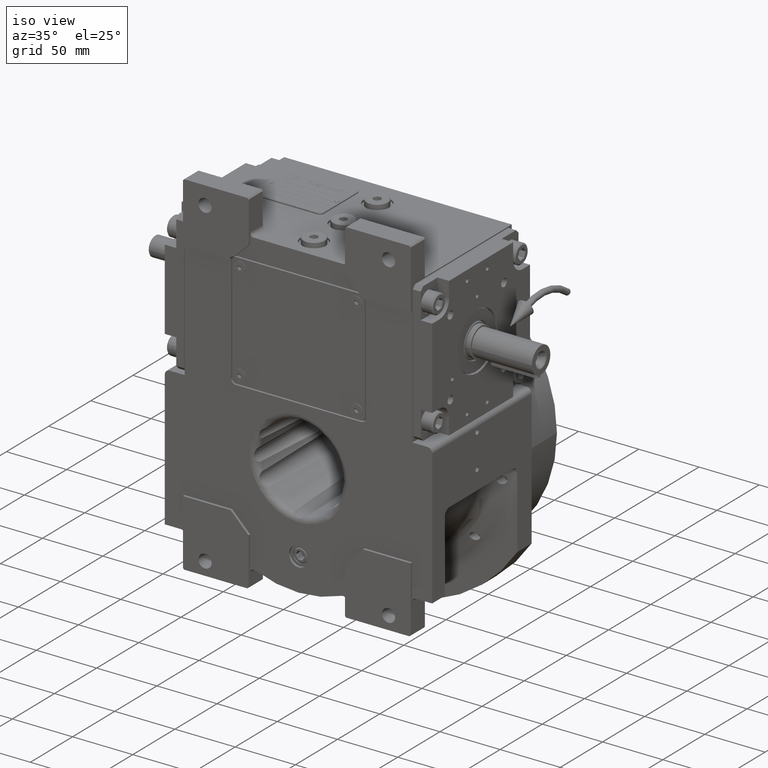
[diagram: clean part render]
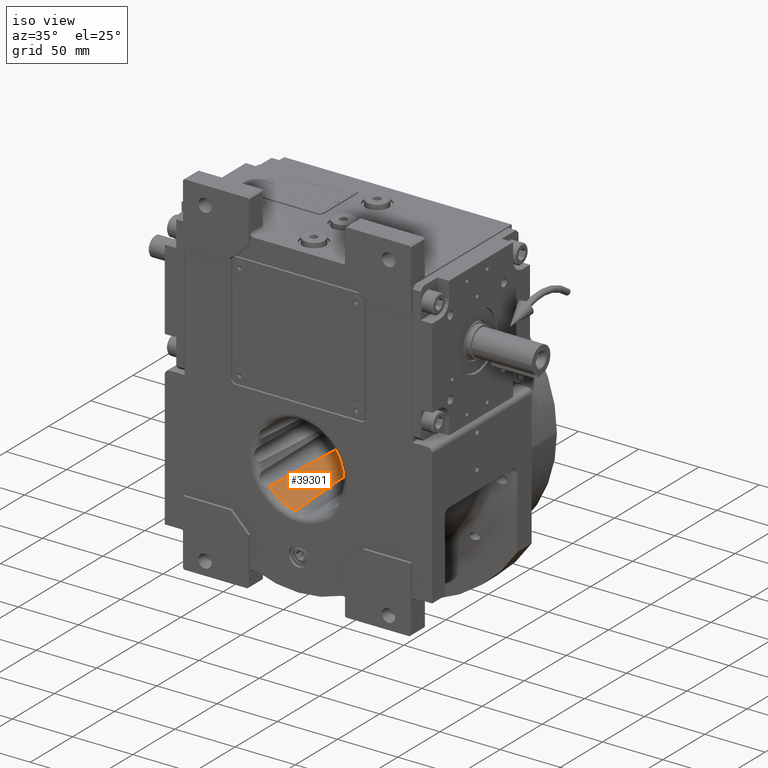
[diagram: same view with one face highlighted and labeled with its STEP entity id]
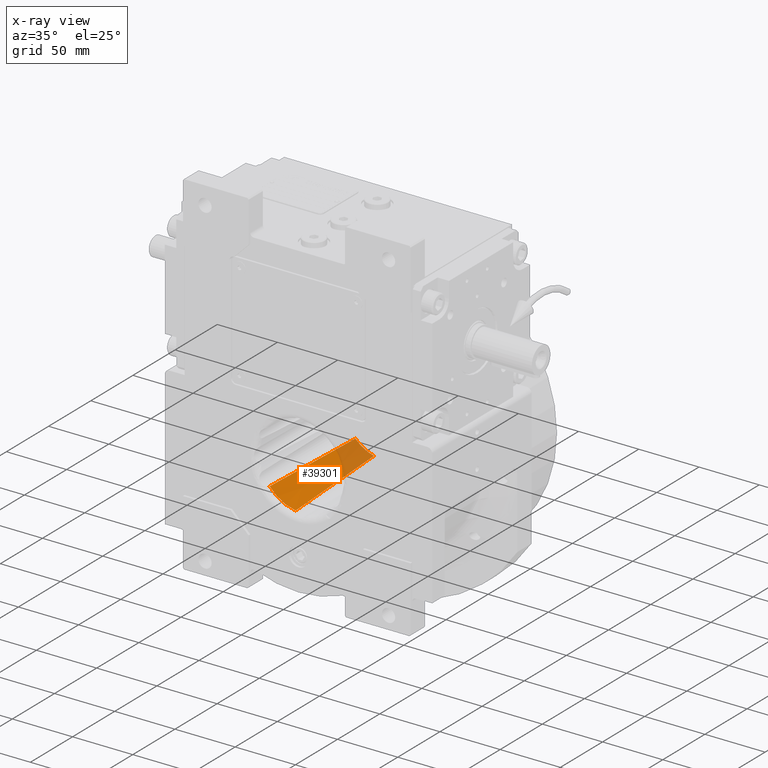
[diagram: x-ray of the same camera — body ghosted, the highlighted face saturated]
A machine part, iso view. The second image highlights one B-rep face of the part: STEP entity #39301.
The next image is the same camera in x-ray: the body ghosted, the highlighted face saturated — about 25% of this face is hidden behind the body in this view.
In plain terms, the highlighted conical surface has half-angle 2.224 deg.
Its self-contained STEP definition (entity closure, byte-faithful):
#450 = CARTESIAN_POINT ( 'NONE',  ( -25.03417263626851863, -5.111746341572933616, -22.44241922405262457 ) ) ;
#648 = CARTESIAN_POINT ( 'NONE',  ( -6.979709668917707610, -1.494847328070269876, -32.74476566864652227 ) ) ;
#791 = CARTESIAN_POINT ( 'NONE',  ( -23.48138045856269684, 30.61457057440819796, -22.08259406602224217 ) ) ;
#2926 = VERTEX_POINT ( 'NONE', #46606 ) ;
#3305 = EDGE_CURVE ( 'NONE', #47916, #8140, #55474, .T. ) ;
#3421 = EDGE_CURVE ( 'NONE', #47916, #64871, #22805, .T. ) ;
#3987 = CARTESIAN_POINT ( 'NONE',  ( -5.723853692384750502, -48.69402850002909844, -34.84639029672324995 ) ) ;
#4878 = CARTESIAN_POINT ( 'NONE',  ( -6.983499318581207760, -1.271834121756846736, -32.73510189993323394 ) ) ;
#5321 = FACE_OUTER_BOUND ( 'NONE', #12709, .T. ) ;
#5352 = CARTESIAN_POINT ( 'NONE',  ( -27.31593238095755183, -48.69402850002909844, -22.38019785351220392 ) ) ;
#5567 = CARTESIAN_POINT ( 'NONE',  ( -6.956713694644892421, -2.830628606097816302, -32.80269391485042263 ) ) ;
#6064 = CARTESIAN_POINT ( 'NONE',  ( -24.14431659667766539, 14.73565036844734344, -22.27525475511802355 ) ) ;
#6397 = CARTESIAN_POINT ( 'NONE',  ( -24.83612322843360687, -0.8028076787682293380, -22.41214229727103913 ) ) ;
#6747 = CARTESIAN_POINT ( 'NONE',  ( -25.22349478661844202, -9.117395867437773305, -22.46406618686458856 ) ) ;
#6760 = ORIENTED_EDGE ( 'NONE', *, *, #3421, .F. ) ;
#6947 = CARTESIAN_POINT ( 'NONE',  ( 7.105427357600998703E-15, -48.69402850002909844, 3.907985046680549760E-14 ) ) ;
#8140 = VERTEX_POINT ( 'NONE', #39649 ) ;
#10805 = CARTESIAN_POINT ( 'NONE',  ( -6.986757225006564376, -1.079452833615444085, -32.72676720994347477 ) ) ;
#11305 = CARTESIAN_POINT ( 'NONE',  ( -24.40343721455667136, 8.805876951910162731, -22.33347346564939429 ) ) ;
#11502 = DIRECTION ( 'NONE',  ( 2.795308803354745262E-15, 1.000000000000000000, 4.872149525102760358E-15 ) ) ;
#12709 = EDGE_LOOP ( 'NONE', ( #6760, #36768, #64089, #46861 ) ) ;
#15123 = AXIS2_PLACEMENT_3D ( 'NONE', #59637, #23126, #17186 ) ;
#15842 = CARTESIAN_POINT ( 'NONE',  ( -24.82765555848224537, -0.6183679703238945669, -22.41083419927870679 ) ) ;
#16217 = CARTESIAN_POINT ( 'NONE',  ( -27.31593238095755183, -48.69402850002909844, -22.38019785351220392 ) ) ;
#16366 = CARTESIAN_POINT ( 'NONE',  ( -6.507895992926484574, -23.90877444692146270, -33.72873704689696694 ) ) ;
#16515 = CARTESIAN_POINT ( 'NONE',  ( -25.51128382859327459, -15.03979162781099532, -22.48583985252554029 ) ) ;
#16723 = CARTESIAN_POINT ( 'NONE',  ( 1.421085471520200056E-14, 46.61641710001730132, 2.842170943040399481E-14 ) ) ;
#17186 = DIRECTION ( 'NONE',  ( 0.000000000000000000, 0.000000000000000000, 1.000000000000000000 ) ) ;
#20587 = CARTESIAN_POINT ( 'NONE',  ( -6.573042581012001229, -21.28232574570029456, -33.61216087140498843 ) ) ;
#20933 = CARTESIAN_POINT ( 'NONE',  ( -6.536400482051990757, -22.78085453538672311, -33.67860664866778819 ) ) ;
#21279 = CARTESIAN_POINT ( 'NONE',  ( -7.465572626883200336, 46.61641710001750027, -30.71779199823645001 ) ) ;
#21626 = CARTESIAN_POINT ( 'NONE',  ( -6.564052057620176406, -21.65130370057567433, -33.62851756936991166 ) ) ;
#21775 = CARTESIAN_POINT ( 'NONE',  ( -25.61991781815207148, -17.24455031387138604, -22.49199927320741565 ) ) ;
#22126 = CARTESIAN_POINT ( 'NONE',  ( -25.80408192873363760, -20.91873774705536704, -22.49810808266440887 ) ) ;
#22482 = CARTESIAN_POINT ( 'NONE',  ( -24.69007782253531857, 2.395844060813892007, -22.38844597924016355 ) ) ;
#22805 = CIRCLE ( 'NONE', #67605, 35.31336033009884545 ) ;
#23126 = DIRECTION ( 'NONE',  ( 0.000000000000000000, -1.000000000000000000, 1.836909530733564901E-16 ) ) ;
#26207 = CARTESIAN_POINT ( 'NONE',  ( -6.022077876998039869, -40.84851846487665483, -34.48864115347780057 ) ) ;
#27402 = CARTESIAN_POINT ( 'NONE',  ( -24.80791845425754261, -0.1879601708139201632, -22.40775267798478509 ) ) ;
#28307 = DIRECTION ( 'NONE',  ( 0.000000000000000000, 1.000000000000000000, 0.000000000000000000 ) ) ;
#31485 = CARTESIAN_POINT ( 'NONE',  ( -6.570175816264884006, -21.40025213424047124, -33.61738769823152495 ) ) ;
#32515 = CARTESIAN_POINT ( 'NONE',  ( -6.985119507308261255, -1.176221860482277837, -32.73095945509626858 ) ) ;
#32664 = CARTESIAN_POINT ( 'NONE',  ( -24.76852740271245068, 0.6730493474297263301, -22.40147263990229476 ) ) ;
#32867 = CARTESIAN_POINT ( 'NONE',  ( -6.972093517984800926, -1.940545460718466453, -32.76408545176024489 ) ) ;
#36724 = CARTESIAN_POINT ( 'NONE',  ( -5.723853692384750502, -48.69402850002909844, -34.84639029672324995 ) ) ;
#36768 = ORIENTED_EDGE ( 'NONE', *, *, #3305, .T. ) ;
#37563 = CARTESIAN_POINT ( 'NONE',  ( -23.16783615542959041, 38.59658209572828724, -21.96288101786877789 ) ) ;
#37906 = CARTESIAN_POINT ( 'NONE',  ( -25.88057552578213816, -22.43255883304616205, -22.49981477761769355 ) ) ;
#39301 = ADVANCED_FACE ( 'NONE', ( #5321 ), #39744, .F. ) ;
#39649 = CARTESIAN_POINT ( 'NONE',  ( -7.465572626883200336, 46.61641710001750027, -30.71779199823645001 ) ) ;
#39744 = CONICAL_SURFACE ( 'NONE', #15123, 1.000000000000000000, 0.03881544608146950126 ) ;
#41971 = CARTESIAN_POINT ( 'NONE',  ( -6.273740631055740202, -32.92053606256847331, -34.13003539084533600 ) ) ;
#43005 = CARTESIAN_POINT ( 'NONE',  ( -6.860290442586793880, -8.134360120738614697, -33.03346330631233485 ) ) ;
#43492 = CARTESIAN_POINT ( 'NONE',  ( -26.42420339653213546, -32.98277519606585884, -22.49775664289081334 ) ) ;
#44366 = DIRECTION ( 'NONE',  ( -0.1620874830058615379, 0.000000000000000000, -0.9867763920224401630 ) ) ;
#44603 = AXIS2_PLACEMENT_3D ( 'NONE', #16723, #11502, #49338 ) ;
#46108 = CARTESIAN_POINT ( 'NONE',  ( -6.599306107035019409, -20.19458487514449629, -33.56397017673172201 ) ) ;
#46606 = CARTESIAN_POINT ( 'NONE',  ( -22.86960190519749858, 46.61641710001740080, -21.82427154779680123 ) ) ;
#46861 = ORIENTED_EDGE ( 'NONE', *, *, #54516, .T. ) ;
#47916 = VERTEX_POINT ( 'NONE', #3987 ) ;
#47928 = CARTESIAN_POINT ( 'NONE',  ( -7.407450296395254874, 30.57923326115427187, -31.37285089430780260 ) ) ;
#47973 = CIRCLE ( 'NONE', #44603, 31.61198380194108637 ) ;
#48636 = CARTESIAN_POINT ( 'NONE',  ( -6.581826262602816335, -20.91999557359411810, -33.59610421288996918 ) ) ;
#48783 = CARTESIAN_POINT ( 'NONE',  ( -24.84177032209975167, -0.9257628672734756758, -22.41301157073668548 ) ) ;
#49139 = CARTESIAN_POINT ( 'NONE',  ( -25.75368476732950285, -19.91655888762519311, -22.49665975858291844 ) ) ;
#49338 = DIRECTION ( 'NONE',  ( -0.2361627373232045857, 5.487550186174298111E-15, -0.9717135182243844538 ) ) ;
#49490 = CARTESIAN_POINT ( 'NONE',  ( -25.73542481551410077, -19.55262967125746698, -22.49607938580384570 ) ) ;
#52853 = CARTESIAN_POINT ( 'NONE',  ( -6.662437457719343037, -17.52649175088214406, -33.44591884644309943 ) ) ;
#53905 = CARTESIAN_POINT ( 'NONE',  ( -6.986198756221731365, -1.112472536775718890, -32.72819764095981299 ) ) ;
#54055 = CARTESIAN_POINT ( 'NONE',  ( -24.53450783009959224, 5.844536195169951931, -22.36053744845037627 ) ) ;
#54516 = EDGE_CURVE ( 'NONE', #2926, #64871, #62966, .T. ) ;
#54733 = CARTESIAN_POINT ( 'NONE',  ( -23.97559823934458478, 18.69828851688093607, -22.23098874880353648 ) ) ;
#55474 = B_SPLINE_CURVE_WITH_KNOTS ( 'NONE', 3,
 ( #36724, #26207, #41971, #16366, #20933, #21626, #31485, #20587, #48636, #46108, #52853, #58820, #43005, #59165, #5567, #32867, #648, #4878, #32515, #53905, #10805, #59531, #47928, #21279 ),
 .UNSPECIFIED., .F., .F.,
 ( 4, 2, 1, 2, 2, 1, 1, 1, 1, 1, 1, 1, 1, 1, 2, 2, 4 ),
 ( 0.000000000000000000, 0.2500000000000004996, 0.2812500000000004996, 0.2851562500000004996, 0.2890625000000004996, 0.2968750000000005551, 0.3125000000000006661, 0.3750000000000013323, 0.4375000000000018874, 0.4687500000000021649, 0.4843750000000022760, 0.4921875000000023870, 0.4960937500000023870, 0.4980468750000023870, 0.4990234375000023870, 0.5000000000000024425, 1.000000000000000000 ),
 .UNSPECIFIED. ) ;
#58632 = CARTESIAN_POINT ( 'NONE',  ( -26.85994327092778988, -40.89856344987803993, -22.45906777047158798 ) ) ;
#58820 = CARTESIAN_POINT ( 'NONE',  ( -6.760513058433492262, -13.11549992965726652, -33.25152393889313629 ) ) ;
#59165 = CARTESIAN_POINT ( 'NONE',  ( -6.925363044724594630, -4.605542417194644855, -32.87978573518132208 ) ) ;
#59320 = CARTESIAN_POINT ( 'NONE',  ( -22.86960190519749858, 46.61641710001740080, -21.82427154779680123 ) ) ;
#59531 = CARTESIAN_POINT ( 'NONE',  ( -7.253242696960011671, 14.69085706488731802, -32.04362592525685471 ) ) ;
#59637 = CARTESIAN_POINT ( 'NONE',  ( 0.000000000000000000, 834.8749999998768772, -1.415119829553997709E-13 ) ) ;
#59667 = CARTESIAN_POINT ( 'NONE',  ( -25.76586295526193027, -20.15906628378643006, -22.49703246913914612 ) ) ;
#60004 = CARTESIAN_POINT ( 'NONE',  ( -24.84450238248044229, -0.9852262049126995214, -22.41343067772889341 ) ) ;
#62683 = EDGE_CURVE ( 'NONE', #8140, #2926, #47973, .T. ) ;
#62966 = B_SPLINE_CURVE_WITH_KNOTS ( 'NONE', 3,
 ( #59320, #37563, #791, #54733, #6064, #11305, #54055, #22482, #32664, #27402, #15842, #6397, #48783, #60004, #450, #6747, #16515, #21775, #49490, #49139, #59667, #64563, #22126, #37906, #64907, #43492, #58632, #5352 ),
 .UNSPECIFIED., .F., .F.,
 ( 4, 2, 2, 1, 1, 1, 1, 1, 2, 2, 2, 1, 1, 2, 2, 1, 2, 4 ),
 ( 0.000000000000000000, 0.2500000000000009437, 0.3750000000000014433, 0.4375000000000016653, 0.4687500000000017764, 0.4843750000000018319, 0.4921875000000018319, 0.4960937500000018874, 0.4980468750000018874, 0.5000000000000018874, 0.6250000000000023315, 0.6875000000000025535, 0.6953125000000026645, 0.6992187500000026645, 0.7031250000000026645, 0.7187500000000024425, 0.7500000000000021094, 1.000000000000000000 ),
 .UNSPECIFIED. ) ;
#64089 = ORIENTED_EDGE ( 'NONE', *, *, #62683, .T. ) ;
#64563 = CARTESIAN_POINT ( 'NONE',  ( -25.77231298794205117, -20.28739144558299756, -22.49722197610445207 ) ) ;
#64871 = VERTEX_POINT ( 'NONE', #16217 ) ;
#64907 = CARTESIAN_POINT ( 'NONE',  ( -25.95781279270587305, -23.94214980640839485, -22.50025392737138930 ) ) ;
#67605 = AXIS2_PLACEMENT_3D ( 'NONE', #6947, #28307, #44366 ) ;